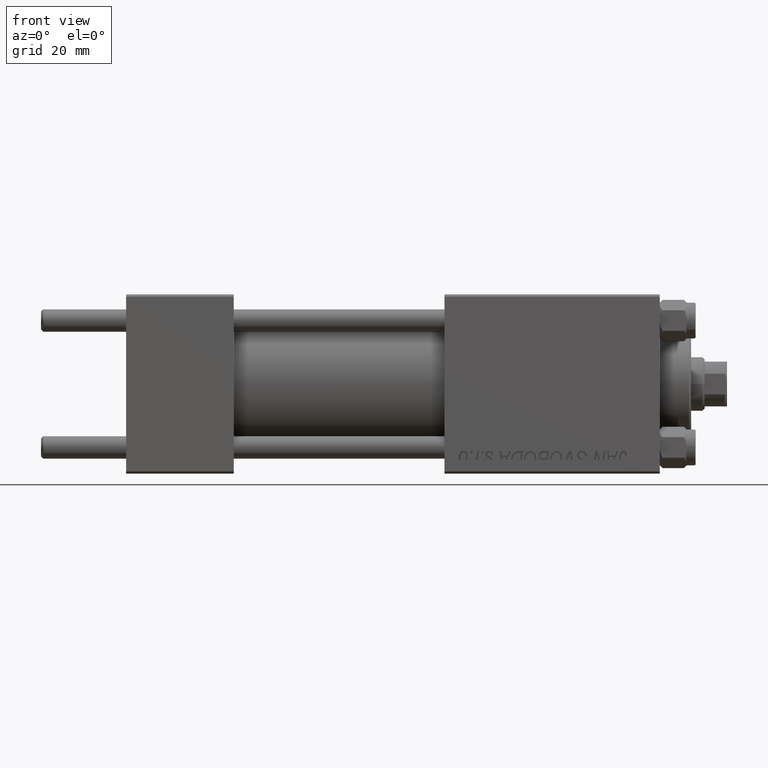
[diagram: clean part render]
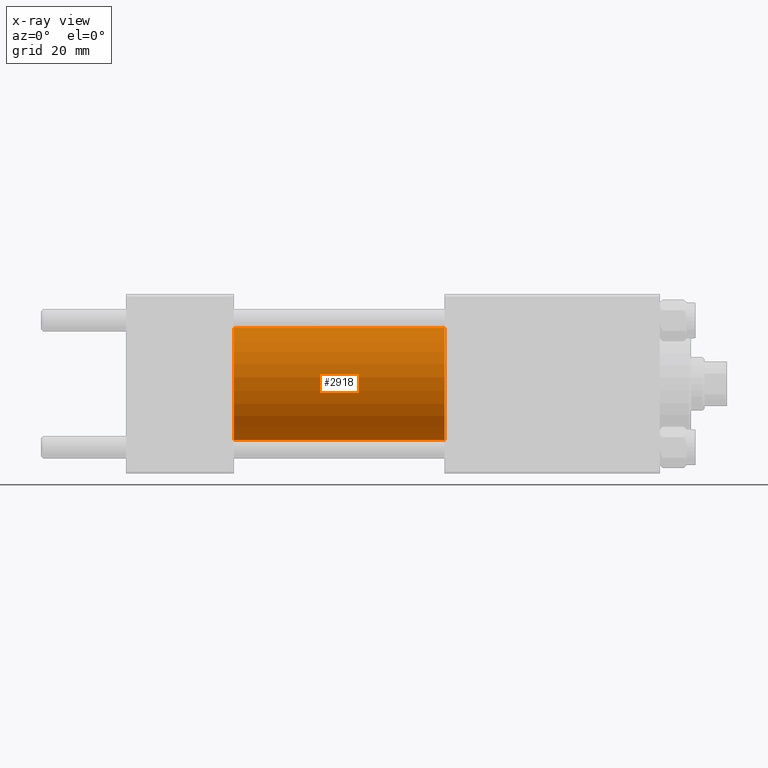
[diagram: x-ray — body ghosted, one internal face saturated and labeled with its STEP entity id]
A machine part, front view, then the same camera in x-ray: the body is ghosted and one INTERNAL B-rep face — a face not visible from any outside direction — is saturated and labeled: STEP entity #2918.
In plain terms, the highlighted cylindrical surface (partial cylindrical patch) has radius 12.5 mm, axis along (-1, -0, -0).
Its self-contained STEP definition (entity closure, byte-faithful):
#336 = DIRECTION ( 'NONE',  ( 0.000000000000000000, 0.000000000000000000, -1.000000000000000000 ) ) ;
#2318 = DIRECTION ( 'NONE',  ( -1.000000000000000000, -0.000000000000000000, -0.000000000000000000 ) ) ;
#2918 = ADVANCED_FACE ( 'NONE', ( #3580 ), #18921, .F. ) ;
#3580 = FACE_OUTER_BOUND ( 'NONE', #33888, .T. ) ;
#4425 = AXIS2_PLACEMENT_3D ( 'NONE', #34440, #42735, #12018 ) ;
#6821 = CIRCLE ( 'NONE', #4425, 12.49999999999999645 ) ;
#6891 = ORIENTED_EDGE ( 'NONE', *, *, #36338, .F. ) ;
#7611 = CARTESIAN_POINT ( 'NONE',  ( 71.00000000000001421, 0.000000000000000000, 0.000000000000000000 ) ) ;
#9252 = LINE ( 'NONE', #16072, #16485 ) ;
#11182 = CARTESIAN_POINT ( 'NONE',  ( 71.00000000000001421, 0.000000000000000000, 0.000000000000000000 ) ) ;
#12018 = DIRECTION ( 'NONE',  ( 0.000000000000000000, 0.000000000000000000, -1.000000000000000000 ) ) ;
#14889 = ORIENTED_EDGE ( 'NONE', *, *, #16177, .T. ) ;
#15736 = CARTESIAN_POINT ( 'NONE',  ( 24.00000000000000000, 1.530808498934191127E-15, -12.49999999999999645 ) ) ;
#16072 = CARTESIAN_POINT ( 'NONE',  ( 71.00000000000001421, 0.000000000000000000, 12.49999999999999645 ) ) ;
#16177 = EDGE_CURVE ( 'NONE', #29850, #31802, #44608, .T. ) ;
#16485 = VECTOR ( 'NONE', #19841, 1000.000000000000000 ) ;
#18921 = CYLINDRICAL_SURFACE ( 'NONE', #27013, 12.49999999999999645 ) ;
#19220 = DIRECTION ( 'NONE',  ( 1.000000000000000000, 0.000000000000000000, 0.000000000000000000 ) ) ;
#19841 = DIRECTION ( 'NONE',  ( -1.000000000000000000, -0.000000000000000000, -0.000000000000000000 ) ) ;
#20178 = CARTESIAN_POINT ( 'NONE',  ( 24.00000000000000000, 0.000000000000000000, 12.49999999999999645 ) ) ;
#20743 = VERTEX_POINT ( 'NONE', #20178 ) ;
#24216 = DIRECTION ( 'NONE',  ( 0.000000000000000000, 0.000000000000000000, 1.000000000000000000 ) ) ;
#24477 = VERTEX_POINT ( 'NONE', #24905 ) ;
#24905 = CARTESIAN_POINT ( 'NONE',  ( 71.00000000000001421, 0.000000000000000000, 12.49999999999999645 ) ) ;
#25224 = CARTESIAN_POINT ( 'NONE',  ( 71.00000000000001421, 1.530808498934191127E-15, -12.49999999999999645 ) ) ;
#27013 = AXIS2_PLACEMENT_3D ( 'NONE', #7611, #27237, #24216 ) ;
#27237 = DIRECTION ( 'NONE',  ( -1.000000000000000000, -0.000000000000000000, -0.000000000000000000 ) ) ;
#27668 = CARTESIAN_POINT ( 'NONE',  ( 71.00000000000001421, 1.530808498934191127E-15, -12.49999999999999645 ) ) ;
#28451 = CIRCLE ( 'NONE', #40529, 12.49999999999999645 ) ;
#28489 = ORIENTED_EDGE ( 'NONE', *, *, #41917, .F. ) ;
#29146 = ORIENTED_EDGE ( 'NONE', *, *, #39356, .T. ) ;
#29850 = VERTEX_POINT ( 'NONE', #27668 ) ;
#31219 = VECTOR ( 'NONE', #2318, 1000.000000000000000 ) ;
#31802 = VERTEX_POINT ( 'NONE', #15736 ) ;
#33888 = EDGE_LOOP ( 'NONE', ( #29146, #14889, #6891, #28489 ) ) ;
#34440 = CARTESIAN_POINT ( 'NONE',  ( 24.00000000000000000, 0.000000000000000000, 0.000000000000000000 ) ) ;
#36338 = EDGE_CURVE ( 'NONE', #20743, #31802, #6821, .T. ) ;
#39356 = EDGE_CURVE ( 'NONE', #24477, #29850, #28451, .T. ) ;
#40529 = AXIS2_PLACEMENT_3D ( 'NONE', #11182, #19220, #336 ) ;
#41917 = EDGE_CURVE ( 'NONE', #24477, #20743, #9252, .T. ) ;
#42735 = DIRECTION ( 'NONE',  ( 1.000000000000000000, 0.000000000000000000, 0.000000000000000000 ) ) ;
#44608 = LINE ( 'NONE', #25224, #31219 ) ;